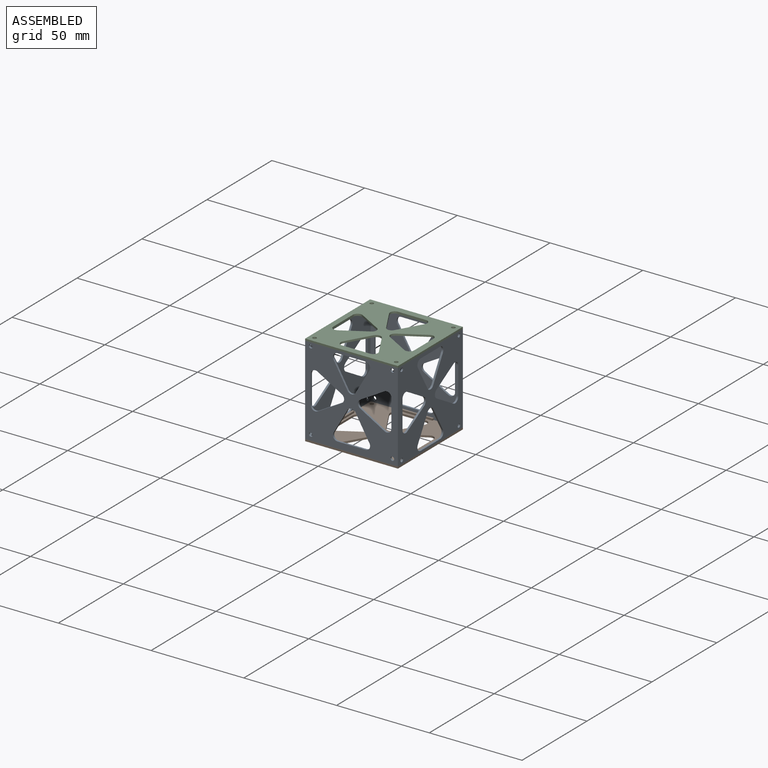
[diagram: assembled view]
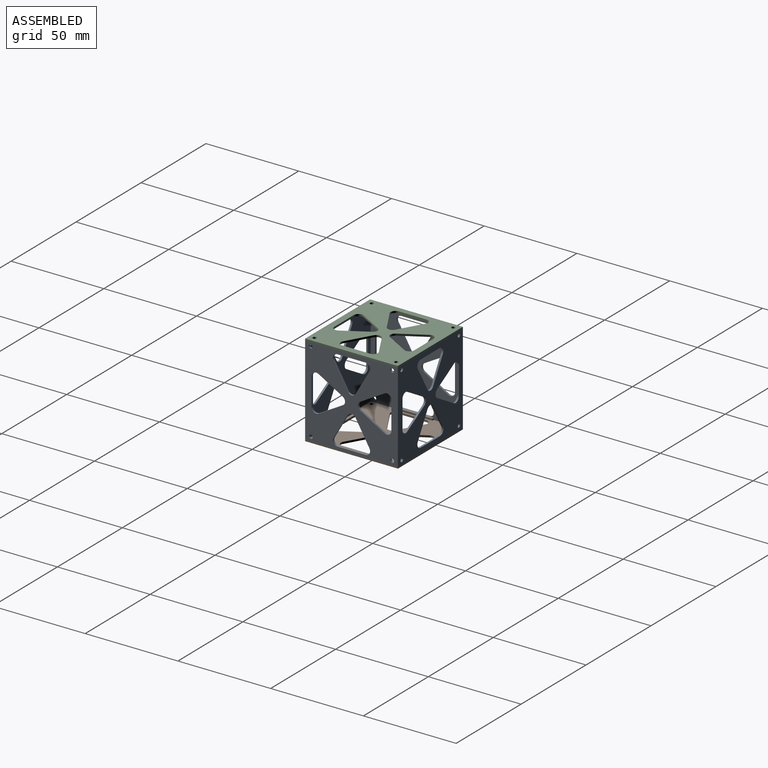
[diagram: assembled view, second angle]
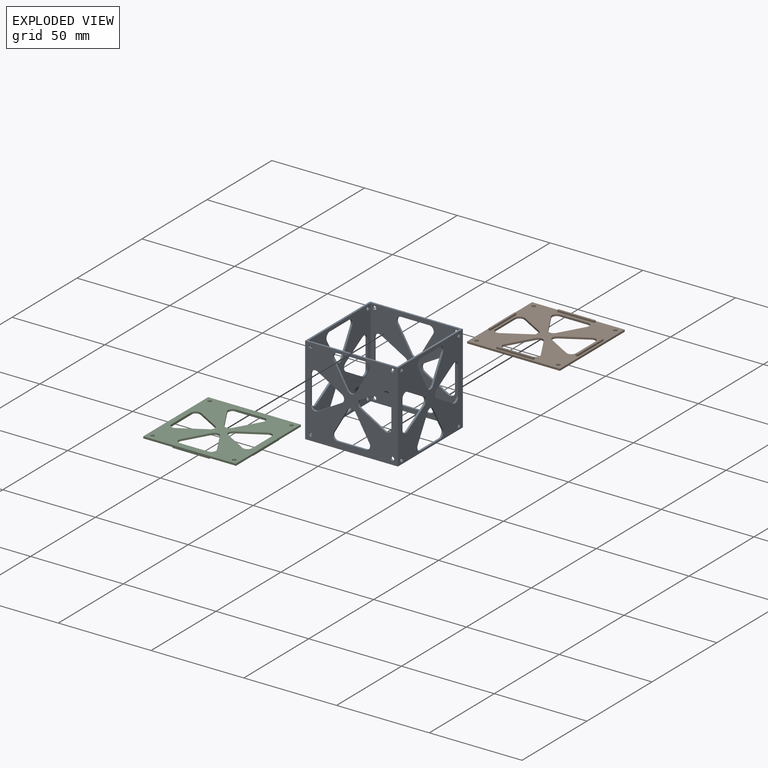
[diagram: exploded view]
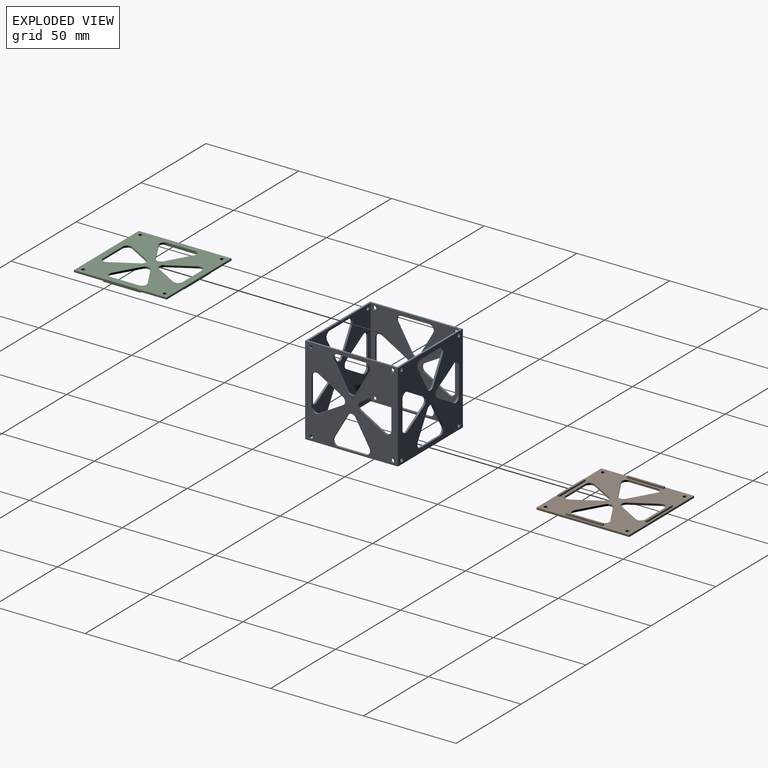
[diagram: exploded view, second angle]
ASSEMBLY  parts=3 mates=6
PART A: 122 faces, bbox 50x48x50 mm
  f0: plane 50x48mm, normal (-1,0,0), area 1469.2mm2, adj f3,f4,f36,f37,f66,f67,f68,f69
  f1: plane 50x48mm, normal (1,0,0), area 1469.2mm2, adj f3,f4,f36,f37,f38,f39,f40,f41
  f2: plane 48x48mm, normal (0,0,1), area 1373.2mm2, adj f6,f7,f8,f9,f10,f11,f12,f13
  f3: plane 50x48mm, normal (0,0,-1), area 1469.2mm2, adj f0,f1,f8,f9,f10,f11,f12,f13
  f4: plane 50x48mm, normal (0,0,1), area 1469.2mm2, adj f0,f1,f36,f37,f94,f95,f96,f97
  f5: plane 48x48mm, normal (0,0,-1), area 1373.2mm2, adj f6,f7,f36,f37,f94,f95,f96,f97
  f6: plane 48x48mm, normal (1,0,0), area 1373.2mm2, adj f2,f5,f36,f37,f66,f67,f68,f69
  f7: plane 48x48mm, normal (-1,0,0), area 1373.2mm2, adj f2,f5,f36,f37,f38,f39,f40,f41
  f8: cylinder r=2.5mm len=3.75mm, axis (0,0,-1), area 5.2mm2, adj f2,f3,f9,f32
  f9: plane 12.99x7.5mm, normal (-0.87,0.5,0), area 15mm2, adj f2,f3,f8,f10
  f10: cylinder r=2.5mm len=4.33mm, axis (0,0,-1), area 5.2mm2, adj f2,f3,f9,f11
  f11: plane 12.99x7.5mm, normal (0.87,0.5,0), area 15mm2, adj f2,f3,f10,f12
  f12: cylinder r=2.5mm len=3.75mm, axis (0,0,-1), area 5.2mm2, adj f2,f3,f11,f32
  f13: cylinder r=2.5mm len=3.75mm, axis (0,0,-1), area 5.2mm2, adj f2,f3,f14,f33
  f14: plane 12.99x7.5mm, normal (-0.5,-0.87,0), area 15mm2, adj f2,f3,f13,f15
  f15: cylinder r=2.5mm len=4.33mm, axis (0,0,-1), area 5.2mm2, adj f2,f3,f14,f16
  f16: plane 12.99x7.5mm, normal (-0.5,0.87,0), area 15mm2, adj f2,f3,f15,f17
  f17: cylinder r=2.5mm len=3.75mm, axis (0,0,-1), area 5.2mm2, adj f2,f3,f16,f33
  f18: cylinder r=2.5mm len=3.75mm, axis (0,0,-1), area 5.2mm2, adj f2,f3,f19,f34
  f19: plane 12.99x7.5mm, normal (0.5,0.87,0), area 15mm2, adj f2,f3,f18,f20
  f20: cylinder r=2.5mm len=4.33mm, axis (0,0,-1), area 5.2mm2, adj f2,f3,f19,f21
  f21: plane 12.99x7.5mm, normal (0.5,-0.87,0), area 15mm2, adj f2,f3,f20,f22
  f22: cylinder r=2.5mm len=3.75mm, axis (0,0,-1), area 5.2mm2, adj f2,f3,f21,f34
  f23: cylinder r=2.5mm len=3.75mm, axis (0,0,-1), area 5.2mm2, adj f2,f3,f24,f35
  f24: plane 12.99x7.5mm, normal (0.87,-0.5,0), area 15mm2, adj f2,f3,f23,f25
  f25: cylinder r=2.5mm len=4.33mm, axis (0,0,-1), area 5.2mm2, adj f2,f3,f24,f26
  f26: plane 12.99x7.5mm, normal (-0.87,-0.5,0), area 15mm2, adj f2,f3,f25,f27
  f27: cylinder r=2.5mm len=3.75mm, axis (0,0,-1), area 5.2mm2, adj f2,f3,f26,f35
  f28: cylinder r=1mm len=2mm, axis (0,0,-1), area 6.3mm2, adj f2,f3
  f29: cylinder r=1mm len=2mm, axis (0,0,-1), area 6.3mm2, adj f2,f3
  f30: cylinder r=1mm len=2mm, axis (0,0,-1), area 6.3mm2, adj f2,f3
  f31: cylinder r=1mm len=2mm, axis (0,0,-1), area 6.3mm2, adj f2,f3
  f32: plane 15x1mm, normal (0,-1,0), area 15mm2, adj f2,f3,f8,f12
  f33: plane 15x1mm, normal (1,0,0), area 15mm2, adj f2,f3,f13,f17
  f34: plane 15x1mm, normal (-1,0,0), area 15mm2, adj f2,f3,f18,f22
  f35: plane 15x1mm, normal (0,1,0), area 15mm2, adj f2,f3,f23,f27
  f36: plane 50x50mm, normal (0,1,0), area 196mm2, adj f0,f1,f2,f3,f4,f5,f6,f7
  f37: plane 50x50mm, normal (0,-1,0), area 196mm2, adj f0,f1,f2,f3,f4,f5,f6,f7
  f38: cylinder r=2.5mm len=4.33mm, axis (-1,0,0), area 5.2mm2, adj f1,f7,f39,f43
  f39: plane 12.99x7.5mm, normal (0,0.5,0.87), area 15mm2, adj f1,f7,f38,f40
  f40: cylinder r=2.5mm len=3.75mm, axis (-1,0,0), area 5.2mm2, adj f1,f7,f39,f41
  f41: plane 15x1mm, normal (0,-1,0), area 15mm2, adj f1,f7,f40,f42
  f42: cylinder r=2.5mm len=3.75mm, axis (-1,0,0), area 5.2mm2, adj f1,f7,f41,f43
  f43: plane 12.99x7.5mm, normal (0,0.5,-0.87), area 15mm2, adj f1,f7,f38,f42
  f44: cylinder r=1mm len=2mm, axis (-1,0,0), area 6.3mm2, adj f1,f7
  f45: cylinder r=1mm len=2mm, axis (-1,0,0), area 6.3mm2, adj f1,f7
  f46: cylinder r=1mm len=2mm, axis (-1,0,0), area 6.3mm2, adj f1,f7
  f47: cylinder r=2.5mm len=4.33mm, axis (-1,0,0), area 5.2mm2, adj f1,f7,f48,f52
  f48: plane 12.99x7.5mm, normal (0,-0.5,-0.87), area 15mm2, adj f1,f7,f47,f49
  f49: cylinder r=2.5mm len=3.75mm, axis (-1,0,0), area 5.2mm2, adj f1,f7,f48,f50
  f50: plane 15x1mm, normal (0,1,0), area 15mm2, adj f1,f7,f49,f51
  f51: cylinder r=2.5mm len=3.75mm, axis (-1,0,0), area 5.2mm2, adj f1,f7,f50,f52
  f52: plane 12.99x7.5mm, normal (0,-0.5,0.87), area 15mm2, adj f1,f7,f47,f51
  f53: cylinder r=2.5mm len=4.33mm, axis (-1,0,0), area 5.2mm2, adj f1,f7,f54,f58
  f54: plane 12.99x7.5mm, normal (0,-0.87,0.5), area 15mm2, adj f1,f7,f53,f55
  f55: cylinder r=2.5mm len=3.75mm, axis (-1,0,0), area 5.2mm2, adj f1,f7,f54,f56
  f56: plane 15x1mm, normal (0,0,-1), area 15mm2, adj f1,f7,f55,f57
  f57: cylinder r=2.5mm len=3.75mm, axis (-1,0,0), area 5.2mm2, adj f1,f7,f56,f58
  f58: plane 12.99x7.5mm, normal (0,0.87,0.5), area 15mm2, adj f1,f7,f53,f57
  f59: cylinder r=2.5mm len=4.33mm, axis (-1,0,0), area 5.2mm2, adj f1,f7,f60,f64
  f60: plane 12.99x7.5mm, normal (0,0.87,-0.5), area 15mm2, adj f1,f7,f59,f61
  f61: cylinder r=2.5mm len=3.75mm, axis (-1,0,0), area 5.2mm2, adj f1,f7,f60,f62
  f62: plane 15x1mm, normal (0,0,1), area 15mm2, adj f1,f7,f61,f63
  f63: cylinder r=2.5mm len=3.75mm, axis (-1,0,0), area 5.2mm2, adj f1,f7,f62,f64
  f64: plane 12.99x7.5mm, normal (0,-0.87,-0.5), area 15mm2, adj f1,f7,f59,f63
  f65: cylinder r=1mm len=2mm, axis (-1,0,0), area 6.3mm2, adj f1,f7
  f66: plane 12.99x7.5mm, normal (0,0.5,-0.87), area 15mm2, adj f0,f6,f67,f71
  f67: cylinder r=2.5mm len=3.75mm, axis (-1,0,0), area 5.2mm2, adj f0,f6,f66,f68
  f68: plane 15x1mm, normal (0,-1,0), area 15mm2, adj f0,f6,f67,f69
  f69: cylinder r=2.5mm len=3.75mm, axis (-1,0,0), area 5.2mm2, adj f0,f6,f68,f70
  f70: plane 12.99x7.5mm, normal (0,0.5,0.87), area 15mm2, adj f0,f6,f69,f71
  f71: cylinder r=2.5mm len=4.33mm, axis (-1,0,0), area 5.2mm2, adj f0,f6,f66,f70
  f72: cylinder r=1mm len=2mm, axis (-1,0,0), area 6.3mm2, adj f0,f6
  f73: cylinder r=1mm len=2mm, axis (-1,0,0), area 6.3mm2, adj f0,f6
  f74: cylinder r=1mm len=2mm, axis (-1,0,0), area 6.3mm2, adj f0,f6
  f75: plane 12.99x7.5mm, normal (0,-0.5,0.87), area 15mm2, adj f0,f6,f76,f80
  f76: cylinder r=2.5mm len=3.75mm, axis (-1,0,0), area 5.2mm2, adj f0,f6,f75,f77
  f77: plane 15x1mm, normal (0,1,0), area 15mm2, adj f0,f6,f76,f78
  f78: cylinder r=2.5mm len=3.75mm, axis (-1,0,0), area 5.2mm2, adj f0,f6,f77,f79
  f79: plane 12.99x7.5mm, normal (0,-0.5,-0.87), area 15mm2, adj f0,f6,f78,f80
  f80: cylinder r=2.5mm len=4.33mm, axis (-1,0,0), area 5.2mm2, adj f0,f6,f75,f79
  f81: plane 12.99x7.5mm, normal (0,0.87,0.5), area 15mm2, adj f0,f6,f82,f86
  f82: cylinder r=2.5mm len=3.75mm, axis (-1,0,0), area 5.2mm2, adj f0,f6,f81,f83
  f83: plane 15x1mm, normal (0,0,-1), area 15mm2, adj f0,f6,f82,f84
  f84: cylinder r=2.5mm len=3.75mm, axis (-1,0,0), area 5.2mm2, adj f0,f6,f83,f85
  f85: plane 12.99x7.5mm, normal (0,-0.87,0.5), area 15mm2, adj f0,f6,f84,f86
  f86: cylinder r=2.5mm len=4.33mm, axis (-1,0,0), area 5.2mm2, adj f0,f6,f81,f85
  f87: plane 12.99x7.5mm, normal (0,-0.87,-0.5), area 15mm2, adj f0,f6,f88,f92
  f88: cylinder r=2.5mm len=3.75mm, axis (-1,0,0), area 5.2mm2, adj f0,f6,f87,f89
  f89: plane 15x1mm, normal (0,0,1), area 15mm2, adj f0,f6,f88,f90
  f90: cylinder r=2.5mm len=3.75mm, axis (-1,0,0), area 5.2mm2, adj f0,f6,f89,f91
  f91: plane 12.99x7.5mm, normal (0,0.87,-0.5), area 15mm2, adj f0,f6,f90,f92
  f92: cylinder r=2.5mm len=4.33mm, axis (-1,0,0), area 5.2mm2, adj f0,f6,f87,f91
  f93: cylinder r=1mm len=2mm, axis (-1,0,0), area 6.3mm2, adj f0,f6
  f94: plane 12.99x7.5mm, normal (-0.87,0.5,0), area 15mm2, adj f4,f5,f95,f99
  f95: cylinder r=2.5mm len=3.75mm, axis (0,0,1), area 5.2mm2, adj f4,f5,f94,f96
  f96: plane 15x1mm, normal (0,-1,0), area 15mm2, adj f4,f5,f95,f97
  f97: cylinder r=2.5mm len=3.75mm, axis (0,0,1), area 5.2mm2, adj f4,f5,f96,f98
  f98: plane 12.99x7.5mm, normal (0.87,0.5,0), area 15mm2, adj f4,f5,f97,f99
  f99: cylinder r=2.5mm len=4.33mm, axis (0,0,1), area 5.2mm2, adj f4,f5,f94,f98
  f100: cylinder r=1mm len=2mm, axis (0,0,1), area 6.3mm2, adj f4,f5
  f101: cylinder r=1mm len=2mm, axis (0,0,1), area 6.3mm2, adj f4,f5
  f102: plane 12.99x7.5mm, normal (0.5,0.87,0), area 15mm2, adj f4,f5,f103,f107
  f103: cylinder r=2.5mm len=3.75mm, axis (0,0,1), area 5.2mm2, adj f4,f5,f102,f104
  f104: plane 15x1mm, normal (-1,0,0), area 15mm2, adj f4,f5,f103,f105
  f105: cylinder r=2.5mm len=3.75mm, axis (0,0,1), area 5.2mm2, adj f4,f5,f104,f106
  f106: plane 12.99x7.5mm, normal (0.5,-0.87,0), area 15mm2, adj f4,f5,f105,f107
  f107: cylinder r=2.5mm len=4.33mm, axis (0,0,1), area 5.2mm2, adj f4,f5,f102,f106
  f108: cylinder r=1mm len=2mm, axis (0,0,1), area 6.3mm2, adj f4,f5
  f109: plane 12.99x7.5mm, normal (-0.5,-0.87,0), area 15mm2, adj f4,f5,f110,f114
  f110: cylinder r=2.5mm len=3.75mm, axis (0,0,1), area 5.2mm2, adj f4,f5,f109,f111
  f111: plane 15x1mm, normal (1,0,0), area 15mm2, adj f4,f5,f110,f112
  f112: cylinder r=2.5mm len=3.75mm, axis (0,0,1), area 5.2mm2, adj f4,f5,f111,f113
  f113: plane 12.99x7.5mm, normal (-0.5,0.87,0), area 15mm2, adj f4,f5,f112,f114
  f114: cylinder r=2.5mm len=4.33mm, axis (0,0,1), area 5.2mm2, adj f4,f5,f109,f113
  f115: cylinder r=1mm len=2mm, axis (0,0,1), area 6.3mm2, adj f4,f5
  f116: plane 12.99x7.5mm, normal (0.87,-0.5,0), area 15mm2, adj f4,f5,f117,f121
  f117: cylinder r=2.5mm len=3.75mm, axis (0,0,1), area 5.2mm2, adj f4,f5,f116,f118
  f118: plane 15x1mm, normal (0,1,0), area 15mm2, adj f4,f5,f117,f119
  f119: cylinder r=2.5mm len=3.75mm, axis (0,0,1), area 5.2mm2, adj f4,f5,f118,f120
  f120: plane 12.99x7.5mm, normal (-0.87,-0.5,0), area 15mm2, adj f4,f5,f119,f121
  f121: cylinder r=2.5mm len=4.33mm, axis (0,0,1), area 5.2mm2, adj f4,f5,f116,f120
PART B: 54 faces, bbox 50x50x2 mm
  f0: plane 50x1mm, normal (0,1,0), area 50mm2, adj f1,f31,f32,f33
  f1: plane 50x1mm, normal (-1,0,0), area 50mm2, adj f0,f2,f32,f33
  f2: plane 50x1mm, normal (0,-1,0), area 50mm2, adj f1,f31,f32,f33
  f3: cylinder r=2.5mm len=3.75mm, axis (0,0,-1), area 5.2mm2, adj f4,f27,f32,f33
  f4: plane 12.99x7.5mm, normal (-0.87,0.5,0), area 15mm2, adj f3,f5,f32,f33
  f5: cylinder r=2.5mm len=4.33mm, axis (0,0,-1), area 5.2mm2, adj f4,f6,f32,f33
  f6: plane 12.99x7.5mm, normal (0.87,0.5,0), area 15mm2, adj f5,f7,f32,f33
  f7: cylinder r=2.5mm len=3.75mm, axis (0,0,-1), area 5.2mm2, adj f6,f27,f32,f33
  f8: cylinder r=2.5mm len=3.75mm, axis (0,0,-1), area 5.2mm2, adj f9,f28,f32,f33
  f9: plane 12.99x7.5mm, normal (-0.5,-0.87,0), area 15mm2, adj f8,f10,f32,f33
  f10: cylinder r=2.5mm len=4.33mm, axis (0,0,-1), area 5.2mm2, adj f9,f11,f32,f33
  f11: plane 12.99x7.5mm, normal (-0.5,0.87,0), area 15mm2, adj f10,f12,f32,f33
  f12: cylinder r=2.5mm len=3.75mm, axis (0,0,-1), area 5.2mm2, adj f11,f28,f32,f33
  f13: cylinder r=2.5mm len=3.75mm, axis (0,0,-1), area 5.2mm2, adj f14,f29,f32,f33
  f14: plane 12.99x7.5mm, normal (0.5,0.87,0), area 15mm2, adj f13,f15,f32,f33
  f15: cylinder r=2.5mm len=4.33mm, axis (0,0,-1), area 5.2mm2, adj f14,f16,f32,f33
  f16: plane 12.99x7.5mm, normal (0.5,-0.87,0), area 15mm2, adj f15,f17,f32,f33
  f17: cylinder r=2.5mm len=3.75mm, axis (0,0,-1), area 5.2mm2, adj f16,f29,f32,f33
  f18: cylinder r=2.5mm len=3.75mm, axis (0,0,-1), area 5.2mm2, adj f19,f30,f32,f33
  f19: plane 12.99x7.5mm, normal (0.87,-0.5,0), area 15mm2, adj f18,f20,f32,f33
  f20: cylinder r=2.5mm len=4.33mm, axis (0,0,-1), area 5.2mm2, adj f19,f21,f32,f33
  f21: plane 12.99x7.5mm, normal (-0.87,-0.5,0), area 15mm2, adj f20,f22,f32,f33
  f22: cylinder r=2.5mm len=3.75mm, axis (0,0,-1), area 5.2mm2, adj f21,f30,f32,f33
  f23: cylinder r=1mm len=2mm, axis (0,0,-1), area 6.3mm2, adj f32,f33
  f24: cylinder r=1mm len=2mm, axis (0,0,-1), area 6.3mm2, adj f32,f33
  f25: cylinder r=1mm len=2mm, axis (0,0,-1), area 6.3mm2, adj f32,f33
  f26: cylinder r=1mm len=2mm, axis (0,0,-1), area 6.3mm2, adj f32,f33
  f27: plane 15x1mm, normal (0,-1,0), area 15mm2, adj f3,f7,f32,f33
  f28: plane 15x1mm, normal (1,0,0), area 15mm2, adj f8,f12,f32,f33
  f29: plane 15x1mm, normal (-1,0,0), area 15mm2, adj f13,f17,f32,f33
  f30: plane 15x1mm, normal (0,1,0), area 15mm2, adj f18,f22,f32,f33
  f31: plane 50x1mm, normal (1,0,0), area 50mm2, adj f0,f2,f32,f33
  f32: plane 50x50mm, normal (0,0,1), area 1489.2mm2, adj f0,f1,f2,f3,f4,f5,f6,f7
  f33: plane 50x50mm, normal (0,0,-1), area 1569.2mm2, adj f0,f1,f2,f3,f4,f5,f6,f7
  f34: plane 1x1mm, normal (0,1,0), area 1mm2, adj f32,f35,f37,f38
  f35: plane 20x1mm, normal (-1,0,0), area 20mm2, adj f32,f34,f36,f38
  f36: plane 1x1mm, normal (0,-1,0), area 1mm2, adj f32,f35,f37,f38
  f37: plane 20x1mm, normal (1,0,0), area 20mm2, adj f32,f34,f36,f38
  f38: plane 20x1mm, normal (0,0,1), area 20mm2, adj f34,f35,f36,f37
  f39: plane 20x1mm, normal (0,1,0), area 20mm2, adj f32,f40,f42,f43
  f40: plane 1x1mm, normal (-1,0,0), area 1mm2, adj f32,f39,f41,f43
  f41: plane 20x1mm, normal (0,-1,0), area 20mm2, adj f32,f40,f42,f43
  f42: plane 1x1mm, normal (1,0,0), area 1mm2, adj f32,f39,f41,f43
  f43: plane 20x1mm, normal (0,0,1), area 20mm2, adj f39,f40,f41,f42
  f44: plane 20x1mm, normal (1,0,0), area 20mm2, adj f32,f45,f47,f48
  f45: plane 1x1mm, normal (0,1,0), area 1mm2, adj f32,f44,f46,f48
  f46: plane 20x1mm, normal (-1,0,0), area 20mm2, adj f32,f45,f47,f48
  f47: plane 1x1mm, normal (0,-1,0), area 1mm2, adj f32,f44,f46,f48
  f48: plane 20x1mm, normal (0,0,1), area 20mm2, adj f44,f45,f46,f47
  f49: plane 1x1mm, normal (-1,0,0), area 1mm2, adj f32,f50,f52,f53
  f50: plane 20x1mm, normal (0,-1,0), area 20mm2, adj f32,f49,f51,f53
  f51: plane 1x1mm, normal (1,0,0), area 1mm2, adj f32,f50,f52,f53
  f52: plane 20x1mm, normal (0,1,0), area 20mm2, adj f32,f49,f51,f53
  f53: plane 20x1mm, normal (0,0,1), area 20mm2, adj f49,f50,f51,f52
PART C: same geometry as B
PLACE A rot(axis=(1,0,0),90deg) t=(-43.09,15.91,66.64)mm
PLACE B t=(-43.09,-6.45,39)mm
PLACE C rot(axis=(1,0,0),180deg) t=(-43.09,-11.73,89)mm
MATE planar C.f0 <-> A.f4  axis (0,-1,0) through (-43.09,-34.09,88.5)mm
MATE planar A.f4 <-> B.f2  axis (0,-1,0) through (-43.02,-34.09,63.37)mm
MATE planar B.f1 <-> A.f0  axis (-1,0,0) through (-68.09,-9.09,39.5)mm
MATE planar A.f0 <-> C.f1  axis (-1,0,0) through (-68.09,-26.84,73.67)mm
MATE planar C.f24 <-> A.f36  axis (0,0,-1) through (-65.09,12.91,88)mm
MATE planar A.f37 <-> B.f32  axis (0,0,-1) through (-43.09,-9.09,40)mm
